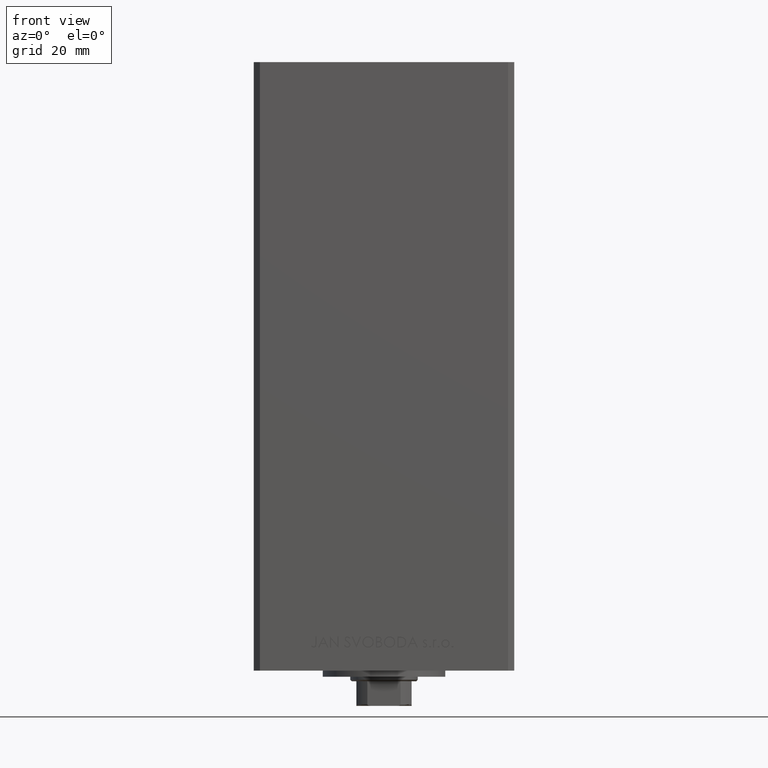
[diagram: clean part render]
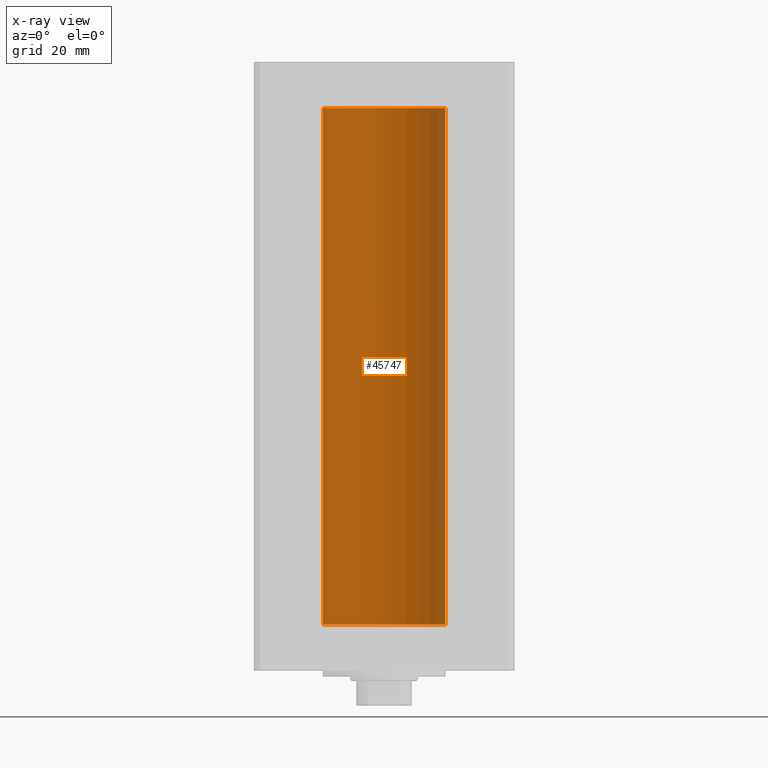
[diagram: x-ray — body ghosted, one internal face saturated and labeled with its STEP entity id]
A machine part, front view, then the same camera in x-ray: the body is ghosted and one INTERNAL B-rep face — a face not visible from any outside direction — is saturated and labeled: STEP entity #45747.
In plain terms, the highlighted cylindrical surface (partial cylindrical patch) has radius 20 mm, axis along (-0, -0, -1).
Its self-contained STEP definition (entity closure, byte-faithful):
#2428 = DIRECTION ( 'NONE',  ( -0.000000000000000000, -0.000000000000000000, -1.000000000000000000 ) ) ;
#2864 = ORIENTED_EDGE ( 'NONE', *, *, #5245, .F. ) ;
#4221 = DIRECTION ( 'NONE',  ( 1.000000000000000000, 0.000000000000000000, 0.000000000000000000 ) ) ;
#5245 = EDGE_CURVE ( 'NONE', #11605, #25745, #13114, .T. ) ;
#5287 = CARTESIAN_POINT ( 'NONE',  ( 20.00000000000000000, 2.449293598294706513E-15, 168.5000000000000000 ) ) ;
#8436 = CARTESIAN_POINT ( 'NONE',  ( 0.000000000000000000, 0.000000000000000000, 0.000000000000000000 ) ) ;
#9625 = ORIENTED_EDGE ( 'NONE', *, *, #37538, .T. ) ;
#9857 = CYLINDRICAL_SURFACE ( 'NONE', #39709, 20.00000000000000000 ) ;
#10975 = CIRCLE ( 'NONE', #37861, 20.00000000000000000 ) ;
#11287 = ORIENTED_EDGE ( 'NONE', *, *, #33378, .T. ) ;
#11605 = VERTEX_POINT ( 'NONE', #24501 ) ;
#13114 = CIRCLE ( 'NONE', #27332, 20.00000000000000000 ) ;
#13278 = ORIENTED_EDGE ( 'NONE', *, *, #27855, .F. ) ;
#16443 = LINE ( 'NONE', #5287, #25775 ) ;
#19819 = DIRECTION ( 'NONE',  ( -0.000000000000000000, 0.000000000000000000, 1.000000000000000000 ) ) ;
#22218 = FACE_OUTER_BOUND ( 'NONE', #40284, .T. ) ;
#22604 = DIRECTION ( 'NONE',  ( 1.000000000000000000, 0.000000000000000000, 0.000000000000000000 ) ) ;
#22791 = CARTESIAN_POINT ( 'NONE',  ( -20.00000000000000000, 0.000000000000000000, 0.000000000000000000 ) ) ;
#22856 = DIRECTION ( 'NONE',  ( -0.000000000000000000, 0.000000000000000000, 1.000000000000000000 ) ) ;
#22919 = VECTOR ( 'NONE', #27053, 1000.000000000000000 ) ;
#23334 = LINE ( 'NONE', #38218, #22919 ) ;
#24501 = CARTESIAN_POINT ( 'NONE',  ( 20.00000000000000000, 2.449293598294706513E-15, 0.000000000000000000 ) ) ;
#24550 = VERTEX_POINT ( 'NONE', #30279 ) ;
#25190 = DIRECTION ( 'NONE',  ( -1.000000000000000000, 0.000000000000000000, 0.000000000000000000 ) ) ;
#25745 = VERTEX_POINT ( 'NONE', #22791 ) ;
#25775 = VECTOR ( 'NONE', #39713, 1000.000000000000000 ) ;
#27053 = DIRECTION ( 'NONE',  ( -0.000000000000000000, -0.000000000000000000, -1.000000000000000000 ) ) ;
#27332 = AXIS2_PLACEMENT_3D ( 'NONE', #8436, #19819, #4221 ) ;
#27855 = EDGE_CURVE ( 'NONE', #48903, #11605, #16443, .T. ) ;
#30279 = CARTESIAN_POINT ( 'NONE',  ( -20.00000000000000000, 0.000000000000000000, 168.5000000000000000 ) ) ;
#33378 = EDGE_CURVE ( 'NONE', #48903, #24550, #10975, .T. ) ;
#36360 = CARTESIAN_POINT ( 'NONE',  ( 0.000000000000000000, 0.000000000000000000, 168.5000000000000000 ) ) ;
#37538 = EDGE_CURVE ( 'NONE', #24550, #25745, #23334, .T. ) ;
#37861 = AXIS2_PLACEMENT_3D ( 'NONE', #38232, #22856, #22604 ) ;
#38218 = CARTESIAN_POINT ( 'NONE',  ( -20.00000000000000000, 0.000000000000000000, 168.5000000000000000 ) ) ;
#38232 = CARTESIAN_POINT ( 'NONE',  ( 0.000000000000000000, 0.000000000000000000, 168.5000000000000000 ) ) ;
#39709 = AXIS2_PLACEMENT_3D ( 'NONE', #36360, #2428, #25190 ) ;
#39713 = DIRECTION ( 'NONE',  ( -0.000000000000000000, -0.000000000000000000, -1.000000000000000000 ) ) ;
#40284 = EDGE_LOOP ( 'NONE', ( #13278, #11287, #9625, #2864 ) ) ;
#45747 = ADVANCED_FACE ( 'NONE', ( #22218 ), #9857, .F. ) ;
#48034 = CARTESIAN_POINT ( 'NONE',  ( 20.00000000000000000, 2.449293598294706513E-15, 168.5000000000000000 ) ) ;
#48903 = VERTEX_POINT ( 'NONE', #48034 ) ;